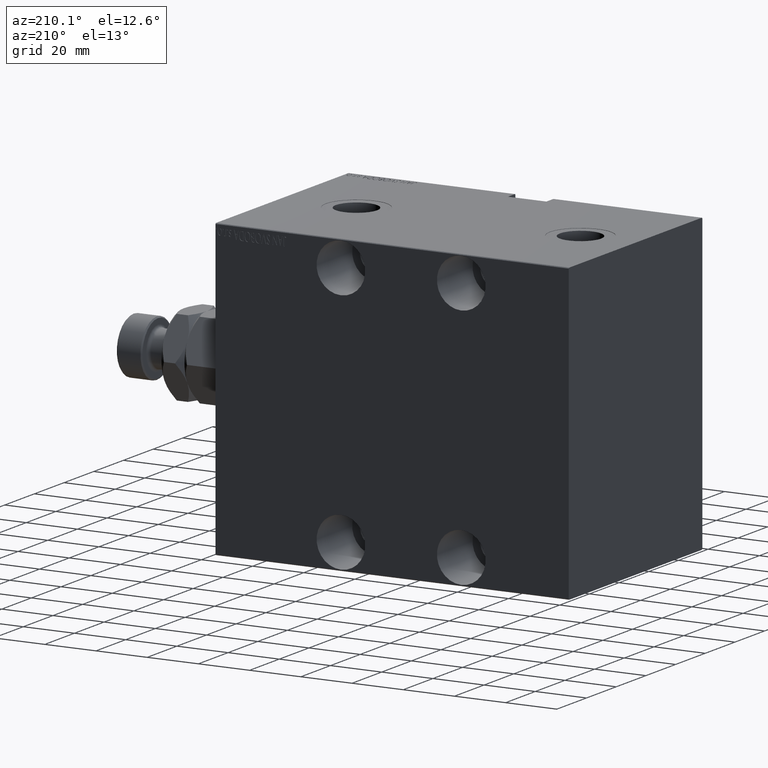
[diagram: clean part render]
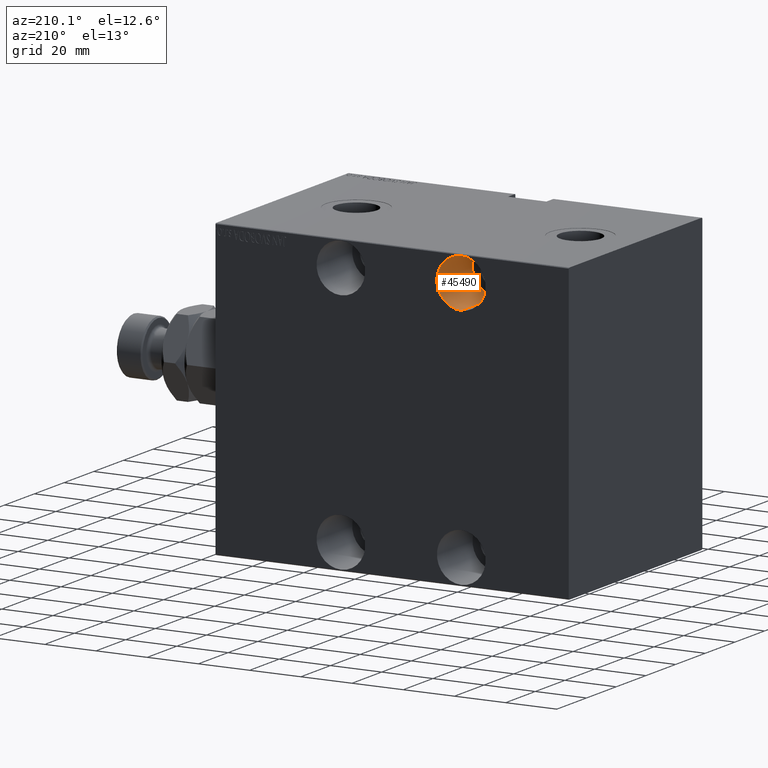
[diagram: same view with one face highlighted and labeled with its STEP entity id]
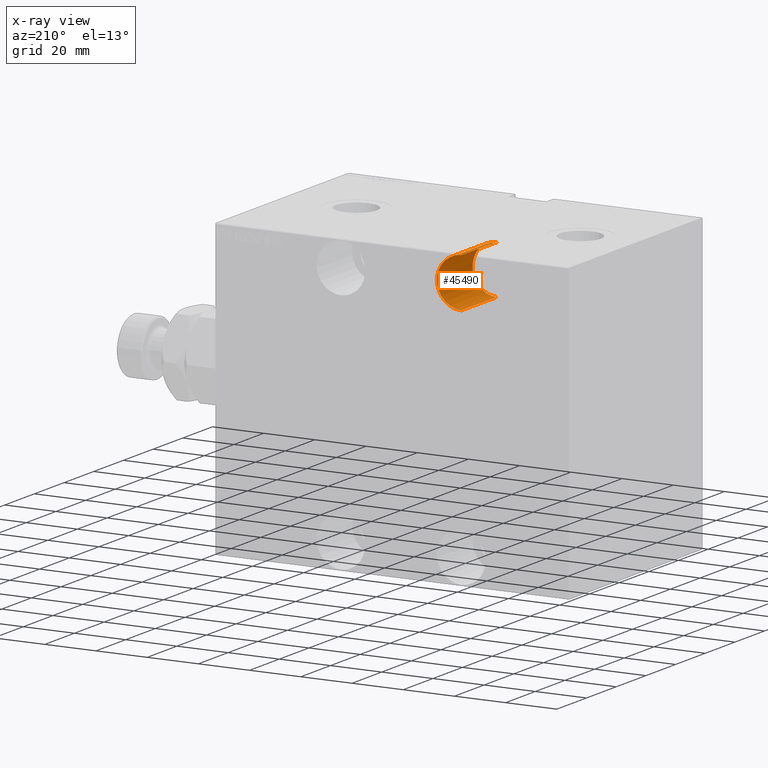
[diagram: x-ray of the same camera — body ghosted, the highlighted face saturated]
A machine part, auxiliary view. The second image highlights one B-rep face of the part: STEP entity #45490.
The next image is the same camera in x-ray: the body ghosted, the highlighted face saturated — about 0% of this face is hidden behind the body in this view.
In plain terms, the highlighted cylindrical surface (edge-blend (fillet) strip) has radius 9.5 mm, axis along (0, 1, -0).
Its self-contained STEP definition (entity closure, byte-faithful):
#433 = FACE_OUTER_BOUND ( 'NONE', #23963, .T. ) ;
#674 = DIRECTION ( 'NONE',  ( 0.000000000000000000, 0.000000000000000000, -1.000000000000000000 ) ) ;
#2586 = DIRECTION ( 'NONE',  ( -0.000000000000000000, -1.000000000000000000, -0.000000000000000000 ) ) ;
#2715 = ORIENTED_EDGE ( 'NONE', *, *, #15520, .T. ) ;
#2900 = ORIENTED_EDGE ( 'NONE', *, *, #6283, .T. ) ;
#4778 = VERTEX_POINT ( 'NONE', #22303 ) ;
#5064 = DIRECTION ( 'NONE',  ( 0.000000000000000000, -1.000000000000000000, 0.000000000000000000 ) ) ;
#6283 = EDGE_CURVE ( 'NONE', #8688, #4778, #33108, .T. ) ;
#6694 = CARTESIAN_POINT ( 'NONE',  ( 96.00000000000000000, -20.99999999999999645, 38.00000000000000711 ) ) ;
#7880 = CYLINDRICAL_SURFACE ( 'NONE', #15635, 9.499999999999994671 ) ;
#8688 = VERTEX_POINT ( 'NONE', #36110 ) ;
#11385 = DIRECTION ( 'NONE',  ( -0.000000000000000000, -1.000000000000000000, -0.000000000000000000 ) ) ;
#11895 = VECTOR ( 'NONE', #2586, 1000.000000000000000 ) ;
#11961 = CARTESIAN_POINT ( 'NONE',  ( 96.00000000000000000, -20.99999999999999645, 47.50000000000000000 ) ) ;
#12062 = DIRECTION ( 'NONE',  ( 0.000000000000000000, 0.000000000000000000, -1.000000000000000000 ) ) ;
#15520 = EDGE_CURVE ( 'NONE', #4778, #36066, #45888, .T. ) ;
#15635 = AXIS2_PLACEMENT_3D ( 'NONE', #39339, #11385, #674 ) ;
#17656 = ORIENTED_EDGE ( 'NONE', *, *, #26200, .F. ) ;
#18593 = VECTOR ( 'NONE', #19380, 1000.000000000000000 ) ;
#19380 = DIRECTION ( 'NONE',  ( -0.000000000000000000, -1.000000000000000000, -0.000000000000000000 ) ) ;
#22210 = VERTEX_POINT ( 'NONE', #6694 ) ;
#22303 = CARTESIAN_POINT ( 'NONE',  ( 96.00000000000000000, -45.00000000000000000, 56.99999999999999289 ) ) ;
#23582 = AXIS2_PLACEMENT_3D ( 'NONE', #40230, #5064, #12062 ) ;
#23793 = LINE ( 'NONE', #44971, #11895 ) ;
#23963 = EDGE_LOOP ( 'NONE', ( #35761, #2900, #2715, #17656 ) ) ;
#26200 = EDGE_CURVE ( 'NONE', #22210, #36066, #23793, .T. ) ;
#28848 = CIRCLE ( 'NONE', #40740, 9.499999999999994671 ) ;
#33108 = LINE ( 'NONE', #36606, #18593 ) ;
#33385 = DIRECTION ( 'NONE',  ( 0.000000000000000000, -1.000000000000000000, 0.000000000000000000 ) ) ;
#35761 = ORIENTED_EDGE ( 'NONE', *, *, #38030, .F. ) ;
#36066 = VERTEX_POINT ( 'NONE', #37636 ) ;
#36110 = CARTESIAN_POINT ( 'NONE',  ( 96.00000000000000000, -20.99999999999999645, 56.99999999999999289 ) ) ;
#36606 = CARTESIAN_POINT ( 'NONE',  ( 96.00000000000000000, -20.99999999999999645, 56.99999999999999289 ) ) ;
#37636 = CARTESIAN_POINT ( 'NONE',  ( 96.00000000000000000, -45.00000000000000000, 38.00000000000000711 ) ) ;
#38030 = EDGE_CURVE ( 'NONE', #8688, #22210, #28848, .T. ) ;
#39339 = CARTESIAN_POINT ( 'NONE',  ( 96.00000000000000000, -20.99999999999999645, 47.50000000000000000 ) ) ;
#40230 = CARTESIAN_POINT ( 'NONE',  ( 96.00000000000000000, -45.00000000000000000, 47.50000000000000000 ) ) ;
#40740 = AXIS2_PLACEMENT_3D ( 'NONE', #11961, #33385, #44539 ) ;
#44539 = DIRECTION ( 'NONE',  ( 0.000000000000000000, 0.000000000000000000, -1.000000000000000000 ) ) ;
#44971 = CARTESIAN_POINT ( 'NONE',  ( 96.00000000000000000, -20.99999999999999645, 38.00000000000000711 ) ) ;
#45490 = ADVANCED_FACE ( 'NONE', ( #433 ), #7880, .F. ) ;
#45888 = CIRCLE ( 'NONE', #23582, 9.499999999999994671 ) ;